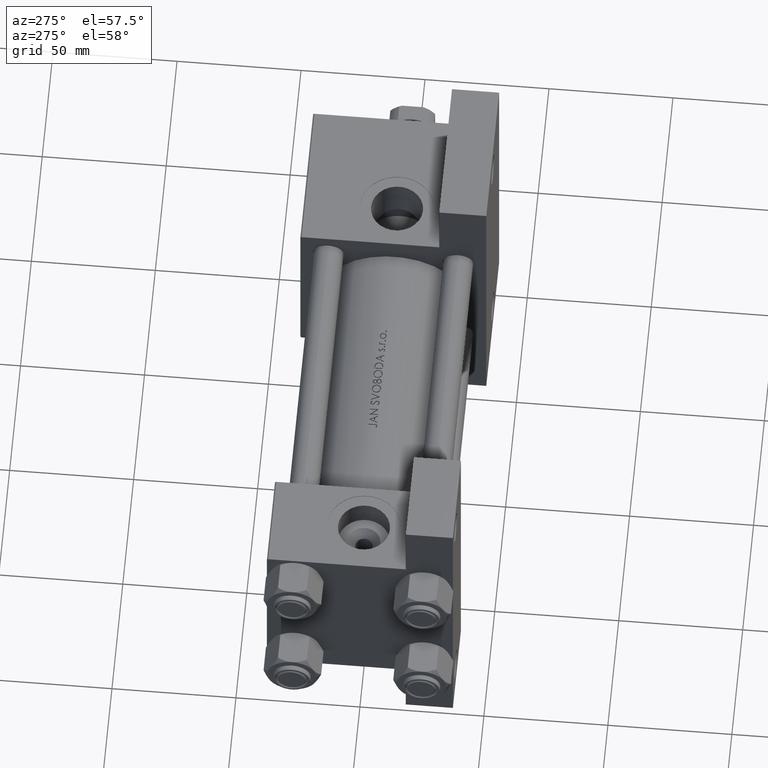
[diagram: clean part render]
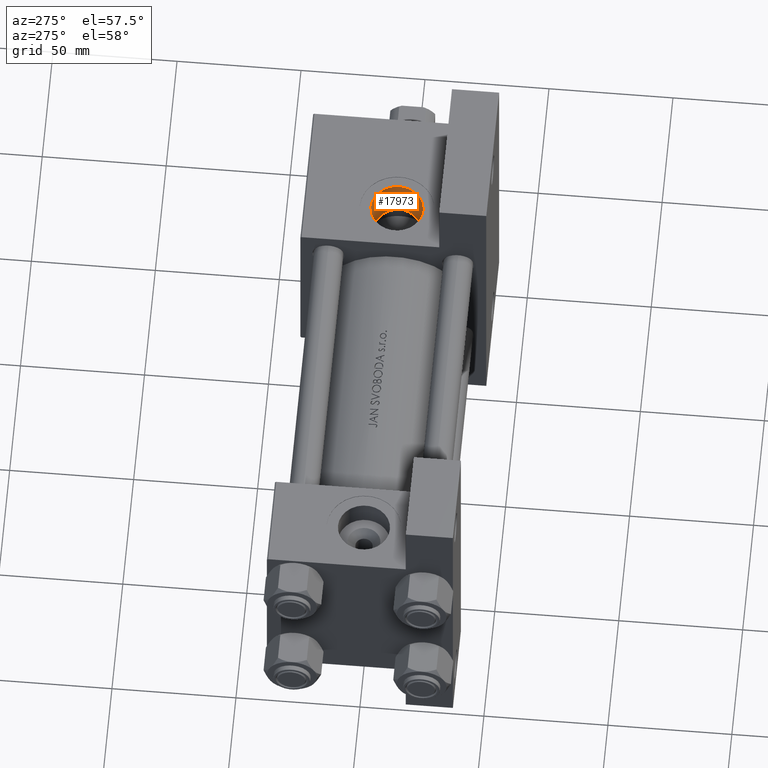
[diagram: same view with one face highlighted and labeled with its STEP entity id]
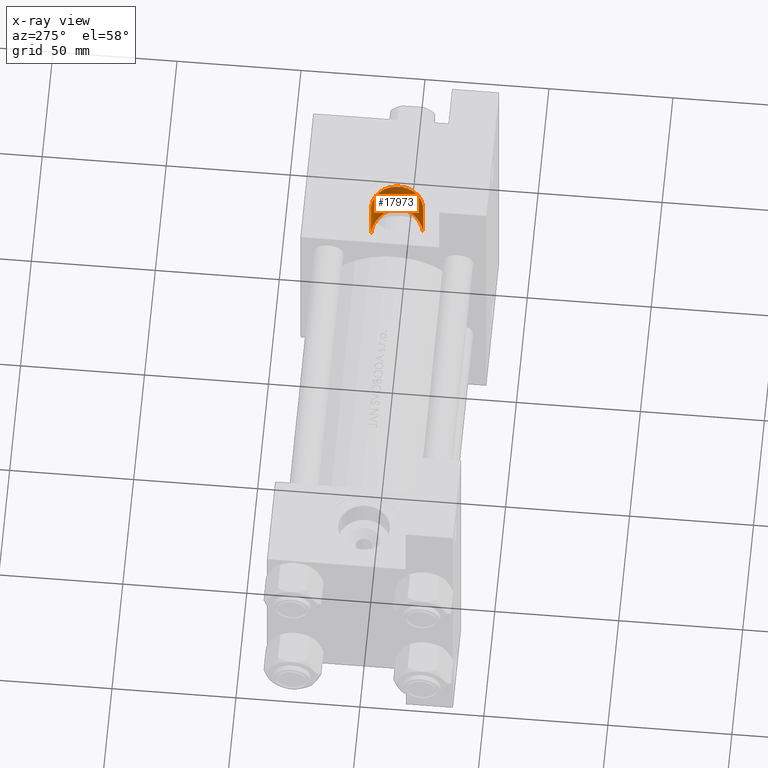
[diagram: x-ray of the same camera — body ghosted, the highlighted face saturated]
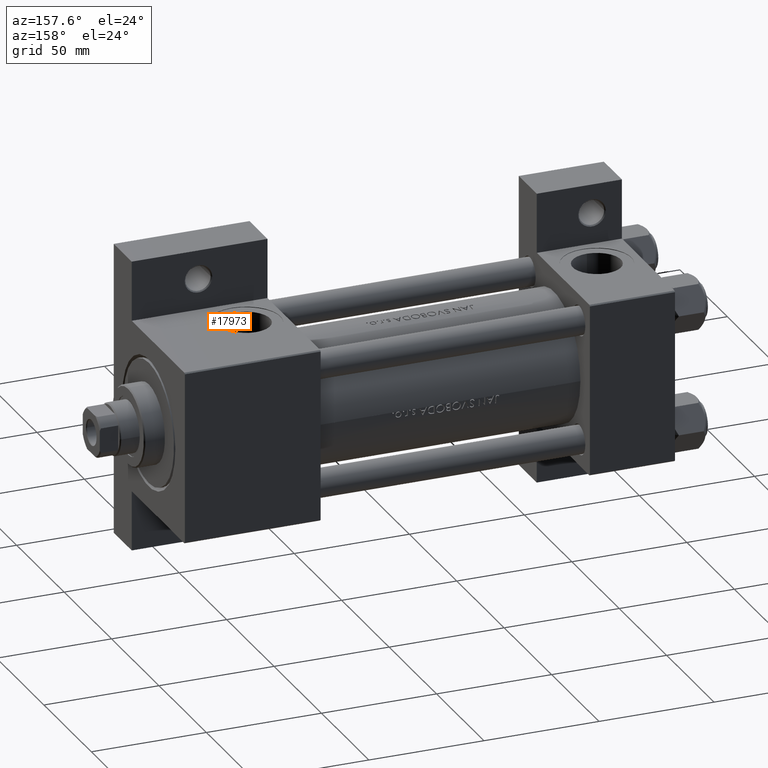
[diagram: same view with one face highlighted and labeled with its STEP entity id]
A machine part, auxiliary view. The second image highlights one B-rep face of the part: STEP entity #17973.
The next image is the same camera in x-ray: the body ghosted, the highlighted face saturated — about 0% of this face is hidden behind the body in this view.
A second angle (auxiliary view) of the same face is appended — the face is thin or edge-on in the first view.
In plain terms, the highlighted cylindrical surface (edge-blend (fillet) strip) has radius 10.48 mm, axis along (-0, -0, 1).
Its self-contained STEP definition (entity closure, byte-faithful):
#924 = CIRCLE ( 'NONE', #11210, 10.47999999999998622 ) ;
#2146 = CARTESIAN_POINT ( 'NONE',  ( 170.9999999999999716, -17.31154528053461306, 10.47999999999999154 ) ) ;
#3448 = CARTESIAN_POINT ( 'NONE',  ( 172.7410054315663785, -17.39963274831551132, 10.34017078318249361 ) ) ;
#3684 = CARTESIAN_POINT ( 'NONE',  ( 181.4015008588858393, -20.48626732390679805, -1.327331865308766901 ) ) ;
#3880 = B_SPLINE_CURVE_WITH_KNOTS ( 'NONE', 3,
 ( #40570, #37590, #14646, #10901, #3448, #44803, #10659, #18633, #9915, #6425, #25860, #21624, #6925, #22123, #34835, #42051, #26843, #4188, #31094, #41810, #19859, #34097, #49277, #38076, #26356, #3684, #8163, #26600, #34588, #42548, #11409, #27345, #23116, #19121, #27095, #15140, #7425, #45541, #38573, #3940, #34345, #7664, #4420, #15882, #37831, #46279, #45782, #38810 ),
 .UNSPECIFIED., .F., .F.,
 ( 4, 2, 2, 2, 2, 2, 2, 2, 2, 2, 2, 2, 2, 2, 2, 2, 2, 2, 2, 2, 2, 2, 2, 4 ),
 ( 0.03337172289375579803, 0.03441233523662728944, 0.03545294757949878778, 0.03753417226524177058, 0.03961539695098476033, 0.04169662163672774313, 0.04377784632247073981, 0.04481845866534223122, 0.04585907100821372262, 0.04794029569395671930, 0.04898090803682821071, 0.05002152037969970211, 0.05106213272257120045, 0.05210274506544269879, 0.05418396975118568160, 0.05522458209405717994, 0.05626519443692867134, 0.05730580677980016968, 0.05834641912267166108, 0.06042764380841469940, 0.06250886849415773772, 0.06459009317990078991, 0.06563070552277235070, 0.06667131786564391149 ),
 .UNSPECIFIED. ) ;
#3940 = CARTESIAN_POINT ( 'NONE',  ( 176.2983228447828878, -18.62849765410346947, -9.067371222007592380 ) ) ;
#4188 = CARTESIAN_POINT ( 'NONE',  ( 180.9112922687107812, -20.12166452589491428, 3.472274471029884957 ) ) ;
#4420 = CARTESIAN_POINT ( 'NONE',  ( 173.7750123670570588, -18.09812027575558702, -10.12979723076933425 ) ) ;
#4772 = VERTEX_POINT ( 'NONE', #31089 ) ;
#6425 = CARTESIAN_POINT ( 'NONE',  ( 177.3953719826938880, -18.50579674927558571, 8.329556230503516900 ) ) ;
#6925 = CARTESIAN_POINT ( 'NONE',  ( 179.2943842801269909, -19.29805340160766747, 6.441284550439725365 ) ) ;
#7425 = CARTESIAN_POINT ( 'NONE',  ( 178.6611621740132989, -19.38999619374664363, -7.159076384942104632 ) ) ;
#7664 = CARTESIAN_POINT ( 'NONE',  ( 174.4291236246859000, -18.20648317701849095, -9.926633415679276595 ) ) ;
#7804 = EDGE_CURVE ( 'NONE', #18850, #4772, #15347, .T. ) ;
#8163 = CARTESIAN_POINT ( 'NONE',  ( 181.3507038963578850, -20.46901633175582447, -1.677836523642098010 ) ) ;
#8942 = CARTESIAN_POINT ( 'NONE',  ( 170.9999999999999716, 37.50100000000000477, 10.47999999999999687 ) ) ;
#9058 = EDGE_LOOP ( 'NONE', ( #48384, #13574, #41096, #45931 ) ) ;
#9293 = AXIS2_PLACEMENT_3D ( 'NONE', #25919, #14708, #33425 ) ;
#9915 = CARTESIAN_POINT ( 'NONE',  ( 176.2787600379286062, -18.12953982762253347, 9.078379935655647159 ) ) ;
#10659 = CARTESIAN_POINT ( 'NONE',  ( 174.4159050215026241, -17.65012615064442869, 9.931528811289364711 ) ) ;
#10718 = CYLINDRICAL_SURFACE ( 'NONE', #9293, 10.47999999999998622 ) ;
#10901 = CARTESIAN_POINT ( 'NONE',  ( 172.3951252308202982, -17.36667489365846606, 10.39267281819420319 ) ) ;
#11210 = AXIS2_PLACEMENT_3D ( 'NONE', #11754, #30955, #42414 ) ;
#11409 = CARTESIAN_POINT ( 'NONE',  ( 180.4025389929008156, -20.07976061505709708, -4.641199740976985844 ) ) ;
#11754 = CARTESIAN_POINT ( 'NONE',  ( 170.9999999999999716, -37.29999999999999716, 3.486794186713383443E-15 ) ) ;
#11846 = CARTESIAN_POINT ( 'NONE',  ( 170.9999999999999716, 37.50100000000000477, -10.47999999999997556 ) ) ;
#13574 = ORIENTED_EDGE ( 'NONE', *, *, #35730, .T. ) ;
#13625 = VECTOR ( 'NONE', #43330, 1000.000000000000000 ) ;
#14646 = CARTESIAN_POINT ( 'NONE',  ( 171.6954312938289036, -17.32248566803110990, 10.46281023584331393 ) ) ;
#14708 = DIRECTION ( 'NONE',  ( -0.000000000000000000, -1.000000000000000000, -8.673617379884036705E-17 ) ) ;
#15140 = CARTESIAN_POINT ( 'NONE',  ( 178.8913372837818372, -19.47582360453931116, -6.904560610471913940 ) ) ;
#15347 = LINE ( 'NONE', #11846, #26816 ) ;
#15882 = CARTESIAN_POINT ( 'NONE',  ( 172.7534701870718550, -17.98521153983802634, -10.33810977386607100 ) ) ;
#17973 = ADVANCED_FACE ( 'NONE', ( #22434 ), #10718, .F. ) ;
#18633 = CARTESIAN_POINT ( 'NONE',  ( 175.6848851208463884, -17.95378683072778259, 9.399761861338273405 ) ) ;
#18850 = VERTEX_POINT ( 'NONE', #19435 ) ;
#19121 = CARTESIAN_POINT ( 'NONE',  ( 179.5247630629396554, -19.72096722719661344, -6.105281524917115732 ) ) ;
#19435 = CARTESIAN_POINT ( 'NONE',  ( 170.9999999999999716, -17.90669148670408362, -10.47999999999998089 ) ) ;
#19859 = CARTESIAN_POINT ( 'NONE',  ( 181.3852102648228595, -20.41012014665353291, 1.448585321857994712 ) ) ;
#20384 = LINE ( 'NONE', #8942, #13625 ) ;
#21624 = CARTESIAN_POINT ( 'NONE',  ( 178.8679744497729303, -19.10325731143032968, 6.954996736502839561 ) ) ;
#22123 = CARTESIAN_POINT ( 'NONE',  ( 179.8632463434474573, -19.57285682509593272, 5.602446212762891342 ) ) ;
#22434 = FACE_OUTER_BOUND ( 'NONE', #9058, .T. ) ;
#23116 = CARTESIAN_POINT ( 'NONE',  ( 179.9026386617617845, -19.87300753805846654, -5.539771893847126094 ) ) ;
#25860 = CARTESIAN_POINT ( 'NONE',  ( 177.9208345979154160, -18.70786800614511236, 7.898040897294844598 ) ) ;
#25919 = CARTESIAN_POINT ( 'NONE',  ( 170.9999999999999716, 37.50100000000000477, 9.974746723040443104E-15 ) ) ;
#26356 = CARTESIAN_POINT ( 'NONE',  ( 181.4669051482524367, -20.50255402113294068, -0.6300211231001662249 ) ) ;
#26600 = CARTESIAN_POINT ( 'NONE',  ( 181.1488622720014803, -20.39261420473474473, -2.705221023230776289 ) ) ;
#26816 = VECTOR ( 'NONE', #49233, 1000.000000000000000 ) ;
#26843 = CARTESIAN_POINT ( 'NONE',  ( 180.5136165929027925, -19.90621515629138827, 4.408684660160838042 ) ) ;
#27095 = CARTESIAN_POINT ( 'NONE',  ( 179.3225662003737568, -19.64111042044597966, -6.378170050295204341 ) ) ;
#27345 = CARTESIAN_POINT ( 'NONE',  ( 180.0783182432221849, -19.94519646484593167, -5.247152792081113404 ) ) ;
#30955 = DIRECTION ( 'NONE',  ( 0.000000000000000000, -1.000000000000000000, -8.673617379884036705E-17 ) ) ;
#31089 = CARTESIAN_POINT ( 'NONE',  ( 170.9999999999999716, -37.29999999999999716, -10.47999999999998266 ) ) ;
#31094 = CARTESIAN_POINT ( 'NONE',  ( 181.1175830810125547, -20.24111318549747551, 2.820020607438576743 ) ) ;
#31755 = EDGE_CURVE ( 'NONE', #4772, #46371, #924, .T. ) ;
#32219 = EDGE_CURVE ( 'NONE', #38597, #46371, #20384, .T. ) ;
#33425 = DIRECTION ( 'NONE',  ( 0.000000000000000000, 0.000000000000000000, -1.000000000000000000 ) ) ;
#34097 = CARTESIAN_POINT ( 'NONE',  ( 181.4583245133796368, -20.46430137750835954, 0.7579182357777466406 ) ) ;
#34267 = CARTESIAN_POINT ( 'NONE',  ( 170.9999999999999716, -37.29999999999999716, 10.47999999999998977 ) ) ;
#34345 = CARTESIAN_POINT ( 'NONE',  ( 175.6885837709134819, -18.47081169218747831, -9.397559365377063045 ) ) ;
#34588 = CARTESIAN_POINT ( 'NONE',  ( 180.9485359727863454, -20.30891902702526153, -3.366903607565236989 ) ) ;
#34835 = CARTESIAN_POINT ( 'NONE',  ( 180.0415136392023214, -19.66186875787549226, 5.310054482731721315 ) ) ;
#35730 = EDGE_CURVE ( 'NONE', #38597, #18850, #3880, .T. ) ;
#37590 = CARTESIAN_POINT ( 'NONE',  ( 171.3470210746792759, -17.31154528053460595, 10.47999999999999510 ) ) ;
#37831 = CARTESIAN_POINT ( 'NONE',  ( 172.4044395936603280, -17.95581939429250085, -10.39141979412303840 ) ) ;
#38076 = CARTESIAN_POINT ( 'NONE',  ( 181.4819445000525775, -20.50178181377810915, -0.2822101851753042179 ) ) ;
#38573 = CARTESIAN_POINT ( 'NONE',  ( 177.4217440813015116, -18.95863385658994815, -8.309672003124298101 ) ) ;
#38597 = VERTEX_POINT ( 'NONE', #2146 ) ;
#38810 = CARTESIAN_POINT ( 'NONE',  ( 170.9999999999999716, -17.90669148670408362, -10.47999999999998089 ) ) ;
#40570 = CARTESIAN_POINT ( 'NONE',  ( 170.9999999999999716, -17.31154528053461306, 10.47999999999999154 ) ) ;
#41096 = ORIENTED_EDGE ( 'NONE', *, *, #7804, .T. ) ;
#41810 = CARTESIAN_POINT ( 'NONE',  ( 181.3311065042815358, -20.37409322011633606, 1.794586109409245456 ) ) ;
#42051 = CARTESIAN_POINT ( 'NONE',  ( 180.3662177968319611, -19.82832408839749760, 4.713768309937338863 ) ) ;
#42414 = DIRECTION ( 'NONE',  ( 0.000000000000000000, 0.000000000000000000, -1.000000000000000000 ) ) ;
#42548 = CARTESIAN_POINT ( 'NONE',  ( 180.5516556862485231, -20.14238090880650134, -4.326202217588882348 ) ) ;
#43330 = DIRECTION ( 'NONE',  ( -0.000000000000000000, -1.000000000000000000, -8.673617379884036705E-17 ) ) ;
#44803 = CARTESIAN_POINT ( 'NONE',  ( 173.7588417203787969, -17.52693762274574851, 10.13402779325157077 ) ) ;
#45541 = CARTESIAN_POINT ( 'NONE',  ( 177.9416544847750856, -19.13207627753017093, -7.880695095096321268 ) ) ;
#45782 = CARTESIAN_POINT ( 'NONE',  ( 171.3524141148301396, -17.90669148670408362, -10.47999999999997556 ) ) ;
#45931 = ORIENTED_EDGE ( 'NONE', *, *, #31755, .T. ) ;
#46279 = CARTESIAN_POINT ( 'NONE',  ( 171.7047145583874510, -17.91665127801143953, -10.46219065497899692 ) ) ;
#46371 = VERTEX_POINT ( 'NONE', #34267 ) ;
#48384 = ORIENTED_EDGE ( 'NONE', *, *, #32219, .F. ) ;
#49233 = DIRECTION ( 'NONE',  ( -0.000000000000000000, -1.000000000000000000, -8.673617379884036705E-17 ) ) ;
#49277 = CARTESIAN_POINT ( 'NONE',  ( 181.4776551375226177, -20.48265569949337461, 0.4117595292702391774 ) ) ;